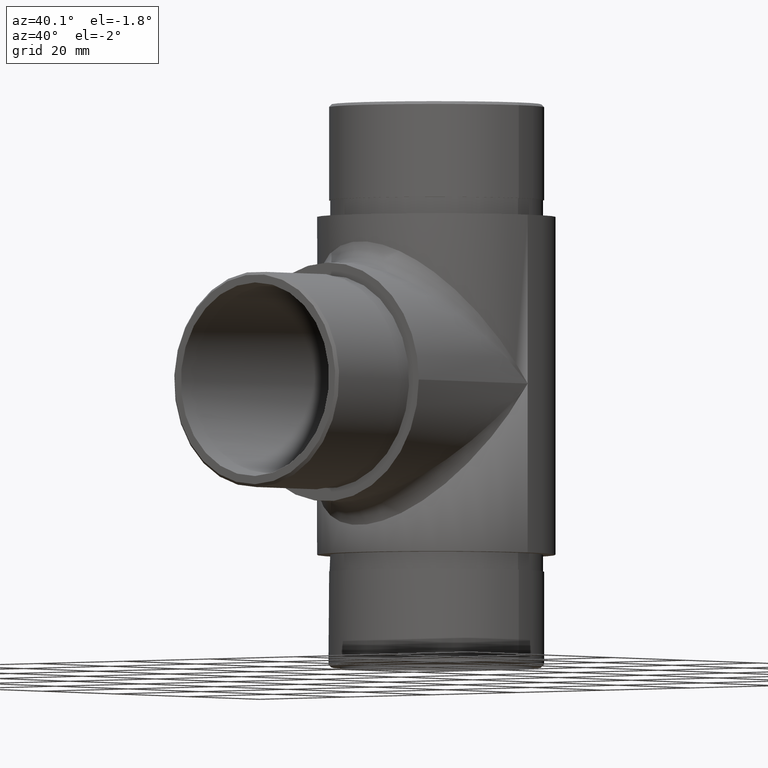
[diagram: clean part render]
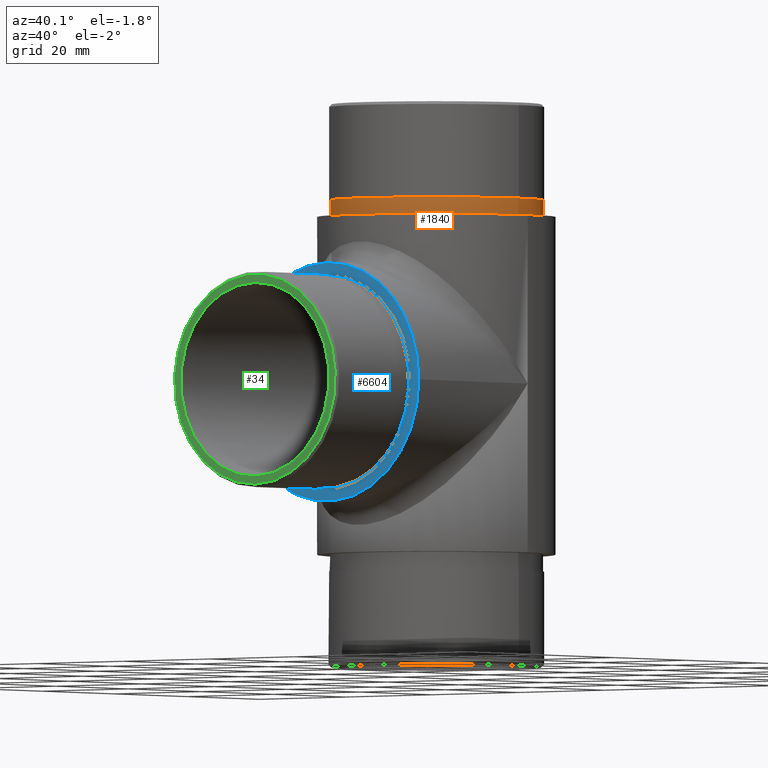
[diagram: same view with three faces highlighted in distinct colors, each labeled with its STEP entity id]
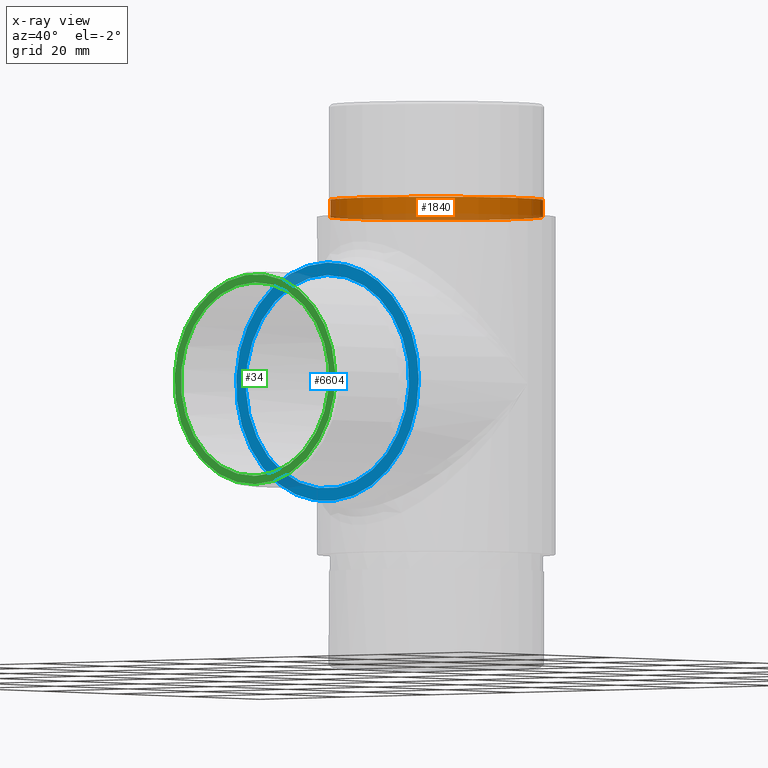
[diagram: x-ray of the same camera — body ghosted, the three highlighted faces saturated]
A machine part, auxiliary view with three faces highlighted in distinct colors.
The next image is the same camera in x-ray (body ghosted, the three faces saturated) — at least one of them is partly hidden behind the body in this view.
Their STEP definitions:

[orange] entity #1840 — the highlighted cylindrical surface (bore or boss wall) has radius 18.95 mm, axis along (-0, -0, -1).
#240 = CARTESIAN_POINT ( 'NONE',  ( 0.0000000000000000000, 50.00000000000000000, 33.00000000000000000 ) ) ;
#273 = DIRECTION ( 'NONE',  ( 1.000000000000000000, 0.0000000000000000000, 0.0000000000000000000 ) ) ;
#1337 = CARTESIAN_POINT ( 'NONE',  ( 0.0000000000000000000, 50.00000000000000000, 30.00000000000000000 ) ) ;
#1840 = ADVANCED_FACE ( 'NONE', ( #9864, #11009 ), #8211, .T. ) ;
#2307 = DIRECTION ( 'NONE',  ( -0.0000000000000000000, -0.0000000000000000000, -1.000000000000000000 ) ) ;
#2351 = DIRECTION ( 'NONE',  ( -1.000000000000000000, 0.0000000000000000000, 0.0000000000000000000 ) ) ;
#3555 = AXIS2_PLACEMENT_3D ( 'NONE', #240, #2307, #2351 ) ;
#4502 = DIRECTION ( 'NONE',  ( 1.000000000000000000, 0.0000000000000000000, 0.0000000000000000000 ) ) ;
#4545 = CARTESIAN_POINT ( 'NONE',  ( 0.0000000000000000000, 50.00000000000000000, 33.00000000000000000 ) ) ;
#5025 = CARTESIAN_POINT ( 'NONE',  ( 18.95000000000000300, 50.00000000000000000, 33.00000000000000000 ) ) ;
#5534 = DIRECTION ( 'NONE',  ( 0.0000000000000000000, 0.0000000000000000000, 1.000000000000000000 ) ) ;
#5797 = EDGE_LOOP ( 'NONE', ( #6743 ) ) ;
#6005 = CIRCLE ( 'NONE', #12456, 18.95000000000000300 ) ;
#6347 = CARTESIAN_POINT ( 'NONE',  ( 18.95000000000000300, 50.00000000000000000, 30.00000000000000000 ) ) ;
#6743 = ORIENTED_EDGE ( 'NONE', *, *, #12981, .F. ) ;
#7785 = VERTEX_POINT ( 'NONE', #5025 ) ;
#8211 = CYLINDRICAL_SURFACE ( 'NONE', #3555, 18.95000000000000300 ) ;
#8341 = EDGE_CURVE ( 'NONE', #13185, #13185, #9185, .T. ) ;
#9185 = CIRCLE ( 'NONE', #12556, 18.95000000000000300 ) ;
#9864 = FACE_OUTER_BOUND ( 'NONE', #5797, .T. ) ;
#11009 = FACE_OUTER_BOUND ( 'NONE', #13119, .T. ) ;
#12456 = AXIS2_PLACEMENT_3D ( 'NONE', #4545, #12840, #4502 ) ;
#12545 = ORIENTED_EDGE ( 'NONE', *, *, #8341, .T. ) ;
#12556 = AXIS2_PLACEMENT_3D ( 'NONE', #1337, #5534, #273 ) ;
#12840 = DIRECTION ( 'NONE',  ( 0.0000000000000000000, 0.0000000000000000000, 1.000000000000000000 ) ) ;
#12981 = EDGE_CURVE ( 'NONE', #7785, #7785, #6005, .T. ) ;
#13119 = EDGE_LOOP ( 'NONE', ( #12545 ) ) ;
#13185 = VERTEX_POINT ( 'NONE', #6347 ) ;

[blue] entity #6604 — the highlighted planar face has unit normal (0, 1, 0).
#346 = ORIENTED_EDGE ( 'NONE', *, *, #2400, .F. ) ;
#507 = CIRCLE ( 'NONE', #12515, 18.95000000000000300 ) ;
#1091 = DIRECTION ( 'NONE',  ( 0.0000000000000000000, 1.000000000000000000, 0.0000000000000000000 ) ) ;
#1958 = ORIENTED_EDGE ( 'NONE', *, *, #9377, .F. ) ;
#2079 = EDGE_LOOP ( 'NONE', ( #346 ) ) ;
#2400 = EDGE_CURVE ( 'NONE', #3219, #3219, #11982, .T. ) ;
#2555 = AXIS2_PLACEMENT_3D ( 'NONE', #12580, #8312, #3151 ) ;
#2598 = AXIS2_PLACEMENT_3D ( 'NONE', #9442, #1091, #8206 ) ;
#3151 = DIRECTION ( 'NONE',  ( 0.0000000000000000000, -0.0000000000000000000, 1.000000000000000000 ) ) ;
#3219 = VERTEX_POINT ( 'NONE', #7064 ) ;
#5257 = PLANE ( 'NONE',  #2555 ) ;
#6028 = CARTESIAN_POINT ( 'NONE',  ( 0.0000000000000000000, 20.00000000000000000, 18.95000000000000300 ) ) ;
#6604 = ADVANCED_FACE ( 'NONE', ( #7236, #8557 ), #5257, .F. ) ;
#6960 = VERTEX_POINT ( 'NONE', #6028 ) ;
#7064 = CARTESIAN_POINT ( 'NONE',  ( 0.0000000000000000000, 20.00000000000000000, 21.19999999999999900 ) ) ;
#7236 = FACE_OUTER_BOUND ( 'NONE', #2079, .T. ) ;
#8206 = DIRECTION ( 'NONE',  ( 0.0000000000000000000, 0.0000000000000000000, 1.000000000000000000 ) ) ;
#8312 = DIRECTION ( 'NONE',  ( 0.0000000000000000000, 1.000000000000000000, 0.0000000000000000000 ) ) ;
#8557 = FACE_BOUND ( 'NONE', #11048, .T. ) ;
#9377 = EDGE_CURVE ( 'NONE', #6960, #6960, #507, .T. ) ;
#9442 = CARTESIAN_POINT ( 'NONE',  ( 0.0000000000000000000, 20.00000000000000000, 0.0000000000000000000 ) ) ;
#11048 = EDGE_LOOP ( 'NONE', ( #1958 ) ) ;
#11552 = DIRECTION ( 'NONE',  ( 0.0000000000000000000, 0.0000000000000000000, 1.000000000000000000 ) ) ;
#11982 = CIRCLE ( 'NONE', #2598, 21.19999999999999900 ) ;
#12143 = DIRECTION ( 'NONE',  ( -0.0000000000000000000, -1.000000000000000000, -0.0000000000000000000 ) ) ;
#12515 = AXIS2_PLACEMENT_3D ( 'NONE', #12924, #12143, #11552 ) ;
#12580 = CARTESIAN_POINT ( 'NONE',  ( 0.0000000000000000000, 20.00000000000000000, 0.0000000000000000000 ) ) ;
#12924 = CARTESIAN_POINT ( 'NONE',  ( 0.0000000000000000000, 20.00000000000000000, 0.0000000000000000000 ) ) ;

[green] entity #34 — the highlighted planar face has unit normal (0, -1, 0).
#34 = ADVANCED_FACE ( 'NONE', ( #5300, #3972 ), #10060, .T. ) ;
#354 = DIRECTION ( 'NONE',  ( 0.0000000000000000000, -1.000000000000000000, 0.0000000000000000000 ) ) ;
#486 = EDGE_LOOP ( 'NONE', ( #9918 ) ) ;
#1459 = CARTESIAN_POINT ( 'NONE',  ( 0.0000000000000000000, 0.0000000000000000000, 0.0000000000000000000 ) ) ;
#1661 = DIRECTION ( 'NONE',  ( 0.0000000000000000000, -1.000000000000000000, 0.0000000000000000000 ) ) ;
#1876 = CARTESIAN_POINT ( 'NONE',  ( 0.0000000000000000000, 0.0000000000000000000, -17.19999999999999900 ) ) ;
#2089 = VERTEX_POINT ( 'NONE', #10232 ) ;
#3505 = DIRECTION ( 'NONE',  ( 0.0000000000000000000, 0.0000000000000000000, -1.000000000000000000 ) ) ;
#3881 = DIRECTION ( 'NONE',  ( 0.0000000000000000000, -0.0000000000000000000, -1.000000000000000000 ) ) ;
#3904 = EDGE_LOOP ( 'NONE', ( #7645 ) ) ;
#3972 = FACE_BOUND ( 'NONE', #486, .T. ) ;
#4484 = CIRCLE ( 'NONE', #6552, 17.19999999999999900 ) ;
#5014 = EDGE_CURVE ( 'NONE', #8784, #8784, #4484, .T. ) ;
#5300 = FACE_OUTER_BOUND ( 'NONE', #3904, .T. ) ;
#5891 = AXIS2_PLACEMENT_3D ( 'NONE', #11123, #10105, #3881 ) ;
#6552 = AXIS2_PLACEMENT_3D ( 'NONE', #9090, #1661, #10143 ) ;
#7166 = AXIS2_PLACEMENT_3D ( 'NONE', #1459, #354, #3505 ) ;
#7327 = CIRCLE ( 'NONE', #7166, 18.64999999999999900 ) ;
#7645 = ORIENTED_EDGE ( 'NONE', *, *, #11734, .T. ) ;
#8784 = VERTEX_POINT ( 'NONE', #1876 ) ;
#9090 = CARTESIAN_POINT ( 'NONE',  ( 0.0000000000000000000, 0.0000000000000000000, 0.0000000000000000000 ) ) ;
#9918 = ORIENTED_EDGE ( 'NONE', *, *, #5014, .F. ) ;
#10060 = PLANE ( 'NONE',  #5891 ) ;
#10105 = DIRECTION ( 'NONE',  ( 0.0000000000000000000, -1.000000000000000000, 0.0000000000000000000 ) ) ;
#10143 = DIRECTION ( 'NONE',  ( 0.0000000000000000000, 0.0000000000000000000, -1.000000000000000000 ) ) ;
#10232 = CARTESIAN_POINT ( 'NONE',  ( 0.0000000000000000000, 0.0000000000000000000, -18.64999999999999900 ) ) ;
#11123 = CARTESIAN_POINT ( 'NONE',  ( 0.0000000000000000000, 0.0000000000000000000, 0.0000000000000000000 ) ) ;
#11734 = EDGE_CURVE ( 'NONE', #2089, #2089, #7327, .T. ) ;